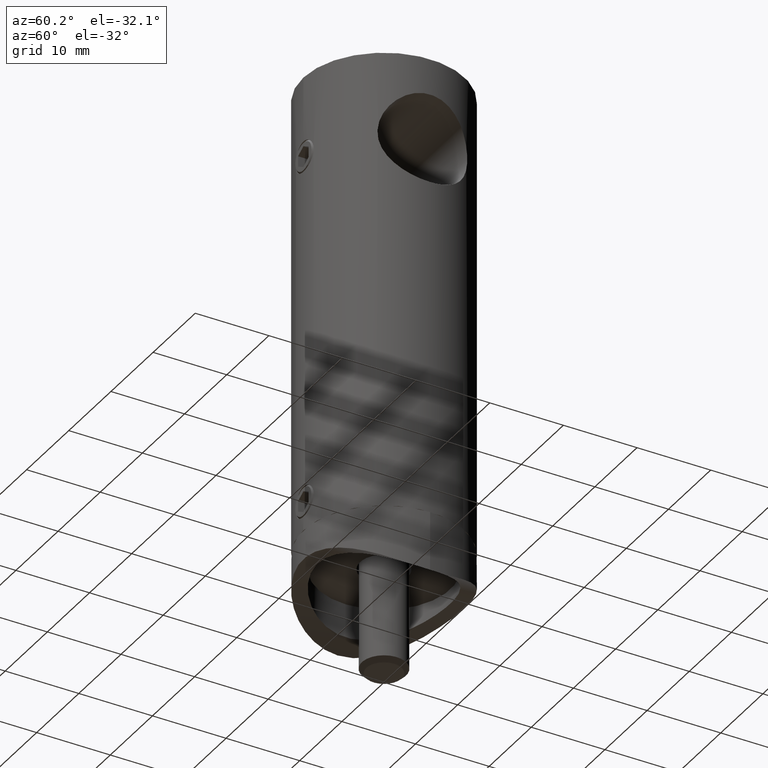
[diagram: clean part render]
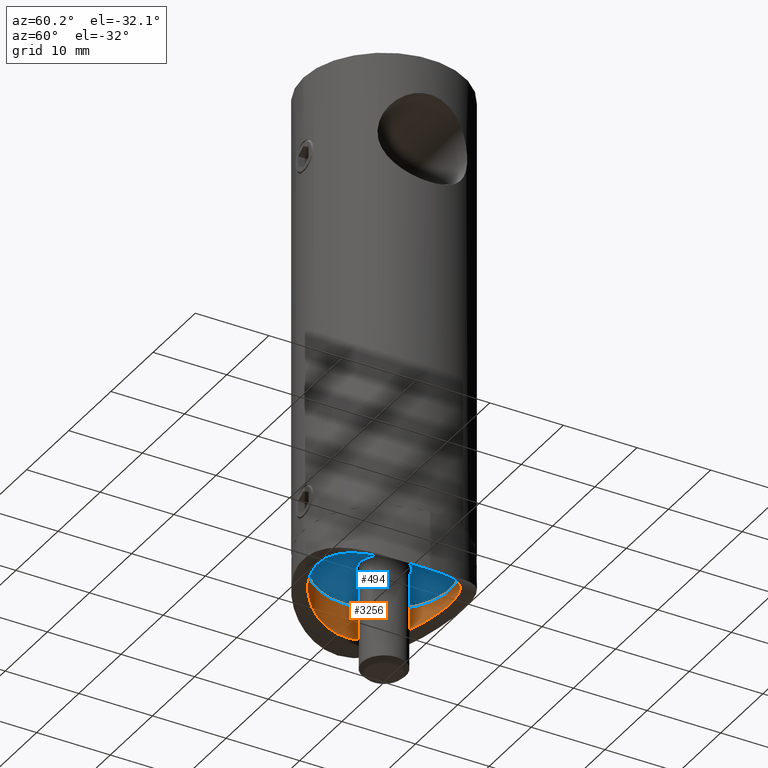
[diagram: same view with the hole feature highlighted: cylindrical wall and planar end face, labeled with their STEP entity ids]
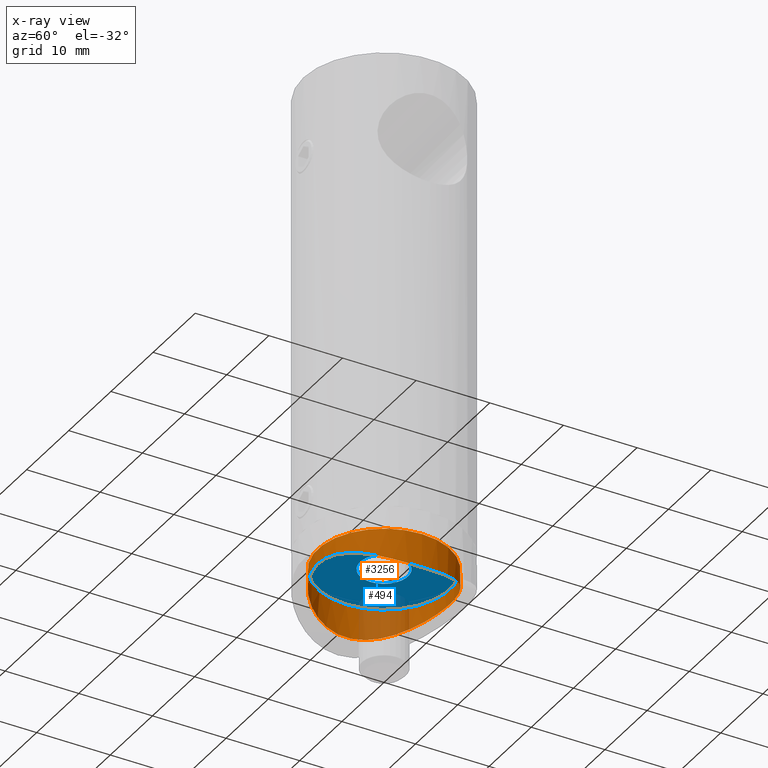
[diagram: x-ray of the same camera — body ghosted, the hole faces saturated]
A machine part, auxiliary view. The highlighted faces form one hole feature of diameter 18 mm: the cylindrical wall (entity #3256, orange) and its adjacent planar end face (entity #494, blue) — they share a circular edge in the B-rep.
The next image is the same camera in x-ray (body ghosted, the hole faces saturated) — the bore reads through the body.
Wall:
#202 = CARTESIAN_POINT ( 'NONE',  ( 6.769756498228755248, -5.937473838987434860, -7.168430931824777197 ) ) ;
#390 = CARTESIAN_POINT ( 'NONE',  ( 2.353999689058933864, 8.707274720112541999, -5.904816326611741495 ) ) ;
#477 = CARTESIAN_POINT ( 'NONE',  ( -8.680771144915242488, -2.394114882269442468, -8.157798624479791982 ) ) ;
#483 = FACE_OUTER_BOUND ( 'NONE', #14865, .T. ) ;
#527 = CARTESIAN_POINT ( 'NONE',  ( -5.942505359260777276, -6.765425809986877148, -6.830853520923604982 ) ) ;
#546 = CARTESIAN_POINT ( 'NONE',  ( -5.533633707270922741, 7.121846342639297056, -6.676473259026420415 ) ) ;
#598 = CARTESIAN_POINT ( 'NONE',  ( -0.6254606039707956144, 8.998160360196061802, -5.750982593789538910 ) ) ;
#807 = CARTESIAN_POINT ( 'NONE',  ( 5.943528670731243579, 6.764565898683116529, -6.831228008002660168 ) ) ;
#1232 = CYLINDRICAL_SURFACE ( 'NONE', #6597, 8.999999999999998224 ) ;
#1481 = CARTESIAN_POINT ( 'NONE',  ( -0.5822777371568756966, -8.986183028970735620, -5.757394420722657280 ) ) ;
#1565 = DIRECTION ( 'NONE',  ( -0.000000000000000000, -0.000000000000000000, 1.000000000000000000 ) ) ;
#1593 = CARTESIAN_POINT ( 'NONE',  ( 8.703958528421884111, -2.365092918737795369, -8.171463347902022889 ) ) ;
#1664 = CARTESIAN_POINT ( 'NONE',  ( -3.777935387974450610, 8.173918097422765427, -6.176671945371073669 ) ) ;
#1702 = CARTESIAN_POINT ( 'NONE',  ( -4.019086237761178459, -8.074481764611890711, -6.226826285162556651 ) ) ;
#1779 = CARTESIAN_POINT ( 'NONE',  ( -4.807725246531373564, 7.613883850405601450, -6.448448853962938543 ) ) ;
#1824 = CARTESIAN_POINT ( 'NONE',  ( -4.041245168714110214, 8.046985468913810280, -6.239635013371435335 ) ) ;
#1983 = CARTESIAN_POINT ( 'NONE',  ( 8.923624948492774323, 1.208437933319259860, -8.306899802793692444 ) ) ;
#2074 = CARTESIAN_POINT ( 'NONE',  ( 8.697453753089316564, 2.390370181689111639, -8.167513435117692566 ) ) ;
#2327 = EDGE_CURVE ( 'NONE', #6731, #6731, #5934, .T. ) ;
#2618 = EDGE_CURVE ( 'NONE', #7478, #7478, #5126, .T. ) ;
#2771 = CARTESIAN_POINT ( 'NONE',  ( 8.072784026240094946, -4.021674449052477840, -7.807415797894997844 ) ) ;
#2791 = CARTESIAN_POINT ( 'NONE',  ( -7.805392656181967759, 4.517992317400706170, -7.662540458132594878 ) ) ;
#2829 = CARTESIAN_POINT ( 'NONE',  ( 6.170767472243694485, -6.557765720885475602, -6.919049366952237712 ) ) ;
#2852 = CARTESIAN_POINT ( 'NONE',  ( 4.012208138427203252, 8.061523673450736283, -6.232474829142356398 ) ) ;
#2889 = CARTESIAN_POINT ( 'NONE',  ( -1.476751091017767026, -8.883008077904746003, -5.812270580325193947 ) ) ;
#2921 = CARTESIAN_POINT ( 'NONE',  ( 8.999999999999998224, 0.000000000000000000, -3.750000000000001776 ) ) ;
#2963 = DIRECTION ( 'NONE',  ( -0.000000000000000000, -0.000000000000000000, 1.000000000000000000 ) ) ;
#3056 = CARTESIAN_POINT ( 'NONE',  ( 5.260507770464916355, 7.308321160069399802, -6.590207816444086042 ) ) ;
#3108 = CARTESIAN_POINT ( 'NONE',  ( 7.625567915572271538, 4.789036509286506593, -7.573160285720820895 ) ) ;
#3205 = CARTESIAN_POINT ( 'NONE',  ( 8.999999999999998224, 0.3035544264433368000, -8.354913127678019080 ) ) ;
#3256 = ADVANCED_FACE ( 'NONE', ( #483, #14065 ), #1232, .F. ) ;
#3995 = CARTESIAN_POINT ( 'NONE',  ( 4.041567885135372684, -8.062832806003335406, -6.232565028840787669 ) ) ;
#4027 = DIRECTION ( 'NONE',  ( 1.000000000000000000, 0.000000000000000000, 0.000000000000000000 ) ) ;
#4051 = CARTESIAN_POINT ( 'NONE',  ( 2.383502363788867040, -8.683790020312519786, -5.916926162043927739 ) ) ;
#4097 = CARTESIAN_POINT ( 'NONE',  ( -6.156201835296486458, -6.571452150948912774, -6.913317047625915812 ) ) ;
#4431 = CARTESIAN_POINT ( 'NONE',  ( 8.522281340456125065, 2.951555618486553456, -8.061744009398445598 ) ) ;
#4472 = CARTESIAN_POINT ( 'NONE',  ( 8.999999999999998224, 4.065758146820641628E-16, -8.354913127678019080 ) ) ;
#4548 = ORIENTED_EDGE ( 'NONE', *, *, #2327, .T. ) ;
#4980 = CARTESIAN_POINT ( 'NONE',  ( 7.136054399886305077, -5.491805371263071223, -7.334363604715455232 ) ) ;
#5030 = CARTESIAN_POINT ( 'NONE',  ( 0.6241749436309375065, -8.998437823462580809, -5.750834395043401770 ) ) ;
#5086 = CARTESIAN_POINT ( 'NONE',  ( 5.276021894448009064, -7.297147494087153241, -6.595311827422430717 ) ) ;
#5126 = B_SPLINE_CURVE_WITH_KNOTS ( 'NONE', 3,
 ( #13549, #11079, #7464, #1593, #5198, #2771, #5144, #7415, #4980, #202, #9823, #2829, #8681, #6412, #5086, #7518, #3995, #6351, #11242, #4051, #11022, #12269, #5030, #14683, #1481, #9869, #2889, #13710, #14951, #11301, #13768, #1702, #5311, #7736, #5254, #527, #4097, #6521, #12491, #6474, #12542, #14892, #7683, #477, #8899, #10091, #7602, #6492, #8861, #12561, #12456, #7818, #13788, #12669, #2791, #11262, #6539, #7759, #546, #1779, #10159, #1824, #1664, #11381, #13678, #12612, #598, #6432, #5424, #11425, #9004, #390, #10058, #11207, #2852, #13987, #7971, #3056, #9062, #807, #11485, #8017, #12727, #3108, #10410, #6791, #10309, #4431, #2074, #9213, #1983, #10362, #3205, #4472 ),
 .UNSPECIFIED., .T., .F.,
 ( 4, 2, 2, 2, 2, 2, 2, 2, 2, 2, 2, 2, 2, 2, 2, 2, 2, 2, 2, 2, 2, 2, 2, 2, 2, 2, 2, 2, 2, 2, 2, 2, 2, 2, 2, 2, 2, 2, 2, 2, 2, 2, 2, 2, 2, 2, 4 ),
 ( 0.000000000000000000, 0.001791929199387567269, 0.003583858398775133670, 0.005375787598162699854, 0.006271752197856484030, 0.007167716797550267339, 0.008063681397244051516, 0.008959645996937833090, 0.01075157519632539971, 0.01164753979601918128, 0.01254350439571296459, 0.01433543359510052774, 0.01523139819479431105, 0.01612736279448809609, 0.01702332739418187940, 0.01791929199387566271, 0.01971122119326322586, 0.02060718579295700570, 0.02150315039265078554, 0.02329507959203834522, 0.02508700879142590143, 0.02598297339111967780, 0.02687893799081345417, 0.02867086719020101038, 0.03046279638958856312, 0.03135876098928234296, 0.03225472558897612280, 0.03404665478836367554, 0.03583858398775122828, 0.03763051318713878796, 0.03852647778683256086, 0.03942244238652634070, 0.04121437158591389344, 0.04300630078530144618, 0.04390226538499522602, 0.04479822998468899892, 0.04659015918407655166, 0.04748612378377033150, 0.04838208838346410440, 0.04927805298315788424, 0.05017401758285166408, 0.05196594678223921682, 0.05286191138193299666, 0.05375787598162676956, 0.05554980518101432924, 0.05644576978070810214, 0.05734173438040188198 ),
 .UNSPECIFIED. ) ;
#5144 = CARTESIAN_POINT ( 'NONE',  ( 7.797088794533238776, -4.532650516029333332, -7.658139167098894085 ) ) ;
#5198 = CARTESIAN_POINT ( 'NONE',  ( 8.526297857816199866, -2.940399998006672622, -8.064091560879914411 ) ) ;
#5254 = CARTESIAN_POINT ( 'NONE',  ( -5.493936980478560272, -7.134494571433201315, -6.669023662124764940 ) ) ;
#5311 = CARTESIAN_POINT ( 'NONE',  ( -4.532702480700876002, -7.797067203172923122, -6.363189922402299636 ) ) ;
#5384 = CARTESIAN_POINT ( 'NONE',  ( 0.000000000000000000, 0.000000000000000000, 5.750000000000000000 ) ) ;
#5424 = CARTESIAN_POINT ( 'NONE',  ( 0.5722147814154153744, 8.986879830245939615, -5.757022464014128538 ) ) ;
#5934 = CIRCLE ( 'NONE', #7269, 8.999999999999998224 ) ;
#6351 = CARTESIAN_POINT ( 'NONE',  ( 3.231651342975603747, -8.404898307200046048, -6.060498670644121511 ) ) ;
#6412 = CARTESIAN_POINT ( 'NONE',  ( 5.511031421548649334, -7.121273697717673379, -6.674942018971740332 ) ) ;
#6432 = CARTESIAN_POINT ( 'NONE',  ( 0.2721457111335696122, 9.000858815726555662, -5.749541286885177627 ) ) ;
#6474 = CARTESIAN_POINT ( 'NONE',  ( -7.787708627573256770, -4.548909255757392245, -7.653203134994748247 ) ) ;
#6492 = CARTESIAN_POINT ( 'NONE',  ( -9.002117627807260547, 0.5654481320849293891, -8.356251025532282384 ) ) ;
#6521 = CARTESIAN_POINT ( 'NONE',  ( -6.767025709518395438, -5.961424383751998235, -7.162278814942807159 ) ) ;
#6539 = CARTESIAN_POINT ( 'NONE',  ( -6.789418910662318396, 5.935974566348909853, -7.172137807243879948 ) ) ;
#6597 = AXIS2_PLACEMENT_3D ( 'NONE', #5384, #1565, #4027 ) ;
#6731 = VERTEX_POINT ( 'NONE', #2921 ) ;
#6791 = CARTESIAN_POINT ( 'NONE',  ( 8.056514729353525084, 4.022235242260659760, -7.800000922084966426 ) ) ;
#7269 = AXIS2_PLACEMENT_3D ( 'NONE', #13796, #2963, #11334 ) ;
#7415 = CARTESIAN_POINT ( 'NONE',  ( 7.309928328518850549, -5.258310225204644972, -7.417105923545980417 ) ) ;
#7464 = CARTESIAN_POINT ( 'NONE',  ( 8.939234714585197139, -1.201100035928156284, -8.316035329679033694 ) ) ;
#7478 = VERTEX_POINT ( 'NONE', #13862 ) ;
#7518 = CARTESIAN_POINT ( 'NONE',  ( 4.552025852731567568, -7.785764892461914499, -6.368630286860568646 ) ) ;
#7602 = CARTESIAN_POINT ( 'NONE',  ( -8.997763151772488754, -0.6309608859205875220, -8.353499907095295995 ) ) ;
#7683 = CARTESIAN_POINT ( 'NONE',  ( -8.504749320993937545, -2.959191228520102968, -8.053446895277073025 ) ) ;
#7736 = CARTESIAN_POINT ( 'NONE',  ( -5.258496553154992093, -7.309796590042277664, -6.589536630094383618 ) ) ;
#7759 = CARTESIAN_POINT ( 'NONE',  ( -5.977026886871080080, 6.753306804108664352, -6.839597385321875223 ) ) ;
#7818 = CARTESIAN_POINT ( 'NONE',  ( -8.523009683764771083, 2.906197388975949814, -8.064151766958435275 ) ) ;
#7971 = CARTESIAN_POINT ( 'NONE',  ( 4.777935619119118016, 7.632550779483405101, -6.439625035806792575 ) ) ;
#8017 = CARTESIAN_POINT ( 'NONE',  ( 6.773231474935248464, 5.954642221051534179, -7.164947323043685756 ) ) ;
#8681 = CARTESIAN_POINT ( 'NONE',  ( 5.957807994985246047, -6.751927895200893204, -6.836641762514618748 ) ) ;
#8861 = CARTESIAN_POINT ( 'NONE',  ( -8.942784940732847687, 1.175460298121187019, -8.318270068185633193 ) ) ;
#8893 = EDGE_LOOP ( 'NONE', ( #4548 ) ) ;
#8899 = CARTESIAN_POINT ( 'NONE',  ( -8.756187516724763142, -2.102059484055850191, -8.203588714871738574 ) ) ;
#9004 = CARTESIAN_POINT ( 'NONE',  ( 1.474042599237737061, 8.883506363623126845, -5.812007519608032524 ) ) ;
#9062 = CARTESIAN_POINT ( 'NONE',  ( 5.493574878806451345, 7.134810432546720982, -6.668887727269298793 ) ) ;
#9213 = CARTESIAN_POINT ( 'NONE',  ( 8.877634590881918086, 1.509137806476186672, -8.278161024891542041 ) ) ;
#9823 = CARTESIAN_POINT ( 'NONE',  ( 6.576742401764640533, -6.150538336385892535, -7.084941400903030484 ) ) ;
#9869 = CARTESIAN_POINT ( 'NONE',  ( -1.181156269983225204, -8.927228162158147740, -5.788775180607092175 ) ) ;
#10058 = CARTESIAN_POINT ( 'NONE',  ( 2.921239271995005993, 8.533463070077417001, -5.995685546142789590 ) ) ;
#10091 = CARTESIAN_POINT ( 'NONE',  ( -8.936562260900338117, -1.223008817333223419, -8.314333553120043518 ) ) ;
#10159 = CARTESIAN_POINT ( 'NONE',  ( -4.555459080950830852, 7.767459701366194125, -6.375296687731400347 ) ) ;
#10309 = CARTESIAN_POINT ( 'NONE',  ( 8.182656430668172831, 3.758905916802296243, -7.869638485047897980 ) ) ;
#10362 = CARTESIAN_POINT ( 'NONE',  ( 8.984605093228685391, 0.6068572968801695389, -8.345152866920285462 ) ) ;
#10410 = CARTESIAN_POINT ( 'NONE',  ( 7.777914304797517886, 4.537604543765378473, -7.651707409948040883 ) ) ;
#10569 = ORIENTED_EDGE ( 'NONE', *, *, #2618, .T. ) ;
#11022 = CARTESIAN_POINT ( 'NONE',  ( 2.092200281080138335, -8.758507331697291676, -5.877817630384451597 ) ) ;
#11079 = CARTESIAN_POINT ( 'NONE',  ( 8.999999999999996447, -0.6071088528866767087, -8.354913127678017304 ) ) ;
#11207 = CARTESIAN_POINT ( 'NONE',  ( 3.744279541798007482, 8.189553005263974228, -6.168887132802682416 ) ) ;
#11242 = CARTESIAN_POINT ( 'NONE',  ( 2.954257939733777594, -8.506565268108296607, -6.008484209500283946 ) ) ;
#11262 = CARTESIAN_POINT ( 'NONE',  ( -7.160907752727973197, 5.482500273980079442, -7.343091655285289399 ) ) ;
#11301 = CARTESIAN_POINT ( 'NONE',  ( -2.917833501594558676, -8.519084111116166369, -6.002056127726985935 ) ) ;
#11334 = DIRECTION ( 'NONE',  ( 1.000000000000000000, 0.000000000000000000, 0.000000000000000000 ) ) ;
#11381 = CARTESIAN_POINT ( 'NONE',  ( -2.969016380059754212, 8.516329794651971596, -6.004475227410789984 ) ) ;
#11425 = CARTESIAN_POINT ( 'NONE',  ( 1.174138839021475089, 8.928204569007862190, -5.788256484811090452 ) ) ;
#11485 = CARTESIAN_POINT ( 'NONE',  ( 6.159890061767187674, 6.568056148921655790, -6.914751887033814270 ) ) ;
#12269 = CARTESIAN_POINT ( 'NONE',  ( 1.216522046379911126, -8.937286215225499930, -5.783718752768100657 ) ) ;
#12456 = CARTESIAN_POINT ( 'NONE',  ( -8.695601738897536848, 2.339698213813251382, -8.166736740360901692 ) ) ;
#12491 = CARTESIAN_POINT ( 'NONE',  ( -7.134608504950917585, -5.517095482785874694, -7.330667870768158068 ) ) ;
#12542 = CARTESIAN_POINT ( 'NONE',  ( -8.063690013734737150, -4.039346743676786033, -7.802458506225568691 ) ) ;
#12561 = CARTESIAN_POINT ( 'NONE',  ( -8.767997700604155398, 2.052070582208249228, -8.210788958126640225 ) ) ;
#12612 = CARTESIAN_POINT ( 'NONE',  ( -1.220418569986014168, 8.937290988820056015, -5.783728545056426640 ) ) ;
#12669 = CARTESIAN_POINT ( 'NONE',  ( -8.081130425237390114, 4.005697824238162674, -7.811957311337415000 ) ) ;
#12727 = CARTESIAN_POINT ( 'NONE',  ( 7.139208689779466432, 5.510746426112778096, -7.332878771086202896 ) ) ;
#13549 = CARTESIAN_POINT ( 'NONE',  ( 8.999999999999998224, 4.065758146820641628E-16, -8.354913127678019080 ) ) ;
#13678 = CARTESIAN_POINT ( 'NONE',  ( -2.403321873601205638, 8.694172512475292436, -5.911667216160062743 ) ) ;
#13710 = CARTESIAN_POINT ( 'NONE',  ( -2.060544425541010138, -8.766001538176631414, -5.873888391995914837 ) ) ;
#13768 = CARTESIAN_POINT ( 'NONE',  ( -3.200048630397410054, -8.417081813282706548, -6.054304738579498135 ) ) ;
#13788 = CARTESIAN_POINT ( 'NONE',  ( -8.422361920626256548, 3.186124711963695955, -8.005363534646166457 ) ) ;
#13796 = CARTESIAN_POINT ( 'NONE',  ( 0.000000000000000000, 0.000000000000000000, -3.750000000000001776 ) ) ;
#13862 = CARTESIAN_POINT ( 'NONE',  ( 8.999999999999998224, 0.000000000000000000, -8.354913127678020857 ) ) ;
#13987 = CARTESIAN_POINT ( 'NONE',  ( 4.528431843985457839, 7.783269436300311206, -6.367717369417863260 ) ) ;
#14065 = FACE_OUTER_BOUND ( 'NONE', #8893, .T. ) ;
#14683 = CARTESIAN_POINT ( 'NONE',  ( -0.2776672623730803702, -9.000737208537469058, -5.749606239696248622 ) ) ;
#14865 = EDGE_LOOP ( 'NONE', ( #10569 ) ) ;
#14892 = CARTESIAN_POINT ( 'NONE',  ( -8.403798506831426707, -3.234350838250581450, -7.994671233382894648 ) ) ;
#14951 = CARTESIAN_POINT ( 'NONE',  ( -2.348742300159042173, -8.693213217374982094, -5.912013220954530190 ) ) ;
End face:
#494 = ADVANCED_FACE ( 'NONE', ( #5219, #15559 ), #3842, .F. ) ;
#1231 = EDGE_CURVE ( 'NONE', #9188, #9188, #10097, .T. ) ;
#2327 = EDGE_CURVE ( 'NONE', #6731, #6731, #5934, .T. ) ;
#2906 = ORIENTED_EDGE ( 'NONE', *, *, #2327, .F. ) ;
#2921 = CARTESIAN_POINT ( 'NONE',  ( 8.999999999999998224, 0.000000000000000000, -3.750000000000001776 ) ) ;
#2963 = DIRECTION ( 'NONE',  ( -0.000000000000000000, -0.000000000000000000, 1.000000000000000000 ) ) ;
#3842 = PLANE ( 'NONE',  #7906 ) ;
#3867 = CARTESIAN_POINT ( 'NONE',  ( 3.250000000000000444, 0.000000000000000000, -3.750000000000001776 ) ) ;
#4673 = ORIENTED_EDGE ( 'NONE', *, *, #1231, .T. ) ;
#4886 = DIRECTION ( 'NONE',  ( 0.000000000000000000, -0.000000000000000000, 1.000000000000000000 ) ) ;
#5219 = FACE_OUTER_BOUND ( 'NONE', #15452, .T. ) ;
#5934 = CIRCLE ( 'NONE', #7269, 8.999999999999998224 ) ;
#6731 = VERTEX_POINT ( 'NONE', #2921 ) ;
#7269 = AXIS2_PLACEMENT_3D ( 'NONE', #13796, #2963, #11334 ) ;
#7906 = AXIS2_PLACEMENT_3D ( 'NONE', #12127, #4886, #14693 ) ;
#8259 = DIRECTION ( 'NONE',  ( -0.000000000000000000, -0.000000000000000000, 1.000000000000000000 ) ) ;
#9188 = VERTEX_POINT ( 'NONE', #3867 ) ;
#9889 = AXIS2_PLACEMENT_3D ( 'NONE', #15403, #8259, #10552 ) ;
#10097 = CIRCLE ( 'NONE', #9889, 3.250000000000000444 ) ;
#10552 = DIRECTION ( 'NONE',  ( 1.000000000000000000, 0.000000000000000000, 0.000000000000000000 ) ) ;
#11334 = DIRECTION ( 'NONE',  ( 1.000000000000000000, 0.000000000000000000, 0.000000000000000000 ) ) ;
#12127 = CARTESIAN_POINT ( 'NONE',  ( 0.000000000000000000, 8.999999999999998224, -3.750000000000001332 ) ) ;
#13256 = EDGE_LOOP ( 'NONE', ( #4673 ) ) ;
#13796 = CARTESIAN_POINT ( 'NONE',  ( 0.000000000000000000, 0.000000000000000000, -3.750000000000001776 ) ) ;
#14693 = DIRECTION ( 'NONE',  ( 1.000000000000000000, 0.000000000000000000, 0.000000000000000000 ) ) ;
#15403 = CARTESIAN_POINT ( 'NONE',  ( 0.000000000000000000, 0.000000000000000000, -3.750000000000001776 ) ) ;
#15452 = EDGE_LOOP ( 'NONE', ( #2906 ) ) ;
#15559 = FACE_BOUND ( 'NONE', #13256, .T. ) ;